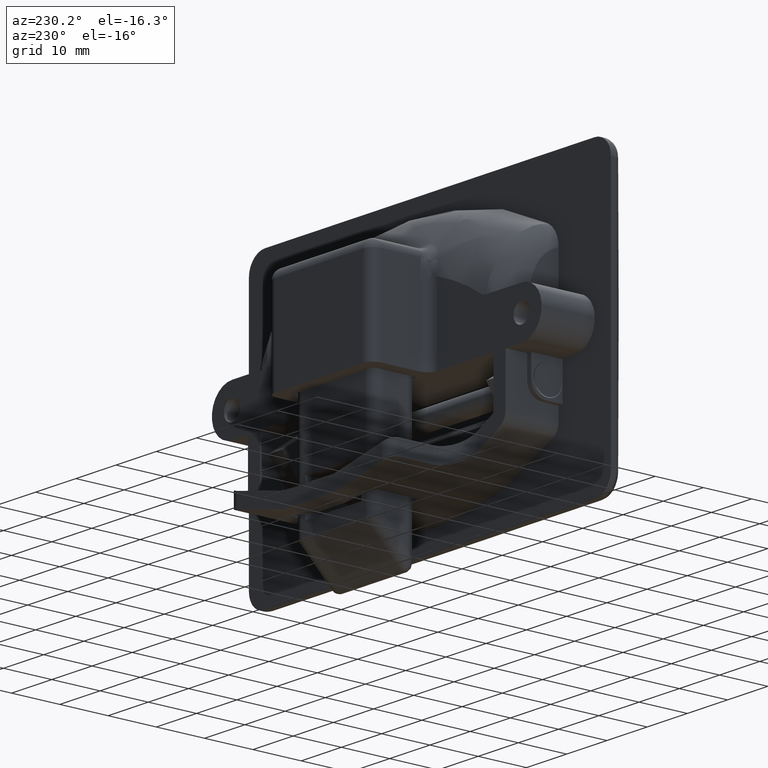
[diagram: clean part render]
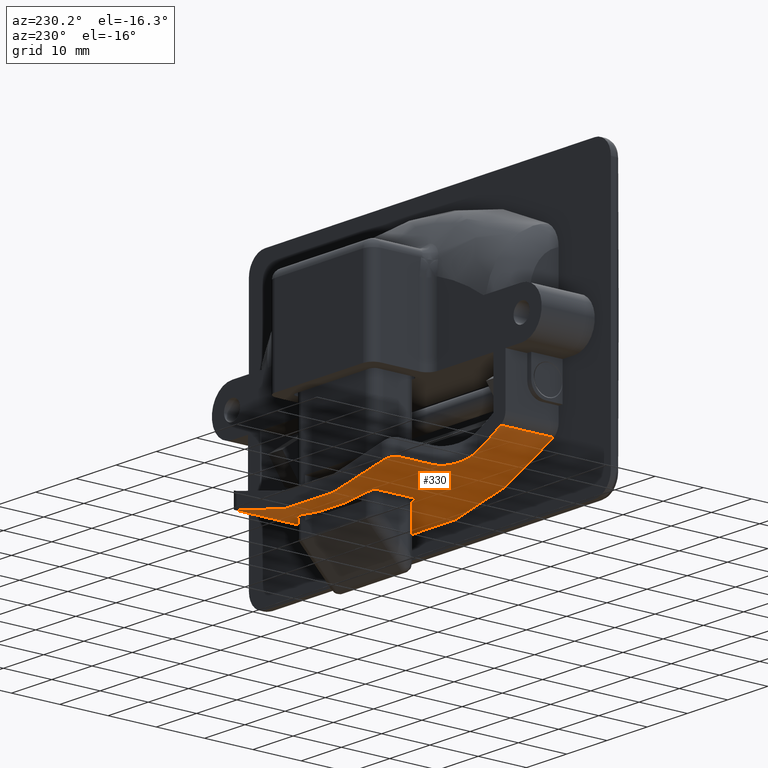
[diagram: same view with one face highlighted and labeled with its STEP entity id]
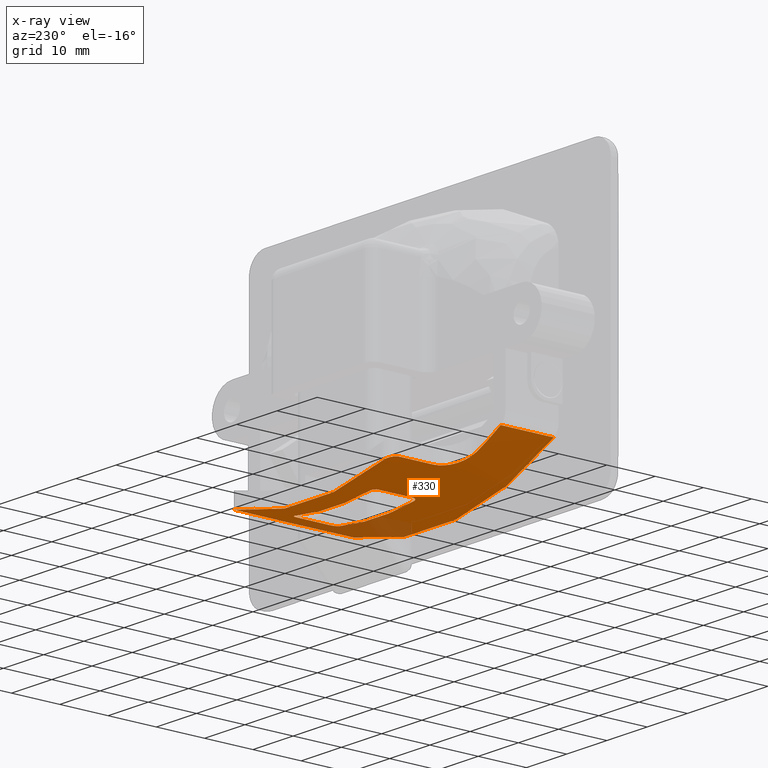
[diagram: x-ray of the same camera — body ghosted, the highlighted face saturated]
A machine part, auxiliary view. The second image highlights one B-rep face of the part: STEP entity #330.
The next image is the same camera in x-ray: the body ghosted, the highlighted face saturated — about 11% of this face is hidden behind the body in this view.
In plain terms, the highlighted cylindrical surface (partial cylindrical patch) has radius 60 mm, axis along (0, 1, 0).
Its self-contained STEP definition (entity closure, byte-faithful):
#330=ADVANCED_FACE('',(#2196,#2197),#2195,.T.);
#2195=CYLINDRICAL_SURFACE('',#4726,6.00000000000E+01);
#2196=FACE_OUTER_BOUND('',#4727,.T.);
#2197=FACE_BOUND('',#4728,.T.);
#4723=CARTESIAN_POINT('',(0.00000000000E+00,1.00000000000E+03,6.40000000000E+01));
#4724=DIRECTION('',(-0.00000000000E+00,1.00000000000E+00,-0.00000000000E+00));
#4725=DIRECTION('',(-0.00000000000E+00,-0.00000000000E+00,1.00000000000E+00));
#4726=AXIS2_PLACEMENT_3D('',#4723,#4724,#4725);
#4727=EDGE_LOOP('',(#5990,#5991,#5992,#5993,#5994,#5995,#5996,#5997,#5998,#5999,#6000,#6001));
#4728=EDGE_LOOP('',(#6002,#6003,#6004,#6005,#6006,#6007,#6008,#6009));
#5990=ORIENTED_EDGE('',*,*,#6631,.T.);
#5991=ORIENTED_EDGE('',*,*,#6694,.T.);
#5992=ORIENTED_EDGE('',*,*,#6628,.T.);
#5993=ORIENTED_EDGE('',*,*,#6459,.T.);
#5994=ORIENTED_EDGE('',*,*,#6571,.T.);
#5995=ORIENTED_EDGE('',*,*,#6696,.T.);
#5996=ORIENTED_EDGE('',*,*,#6538,.F.);
#5997=ORIENTED_EDGE('',*,*,#6695,.T.);
#5998=ORIENTED_EDGE('',*,*,#6557,.T.);
#5999=ORIENTED_EDGE('',*,*,#6453,.T.);
#6000=ORIENTED_EDGE('',*,*,#6627,.F.);
#6001=ORIENTED_EDGE('',*,*,#6461,.T.);
#6002=ORIENTED_EDGE('',*,*,#6697,.F.);
#6003=ORIENTED_EDGE('',*,*,#6698,.T.);
#6004=ORIENTED_EDGE('',*,*,#6699,.F.);
#6005=ORIENTED_EDGE('',*,*,#6700,.T.);
#6006=ORIENTED_EDGE('',*,*,#6701,.F.);
#6007=ORIENTED_EDGE('',*,*,#6702,.T.);
#6008=ORIENTED_EDGE('',*,*,#6703,.F.);
#6009=ORIENTED_EDGE('',*,*,#6704,.T.);
#6453=EDGE_CURVE('',#8563,#8564,#8565,.T.);
#6459=EDGE_CURVE('',#8606,#8599,#8607,.T.);
#6461=EDGE_CURVE('',#8619,#8620,#8621,.T.);
#6538=EDGE_CURVE('',#9140,#9147,#9148,.T.);
#6557=EDGE_CURVE('',#9275,#8563,#9276,.T.);
#6571=EDGE_CURVE('',#8599,#9363,#9370,.T.);
#6627=EDGE_CURVE('',#8619,#8564,#9739,.T.);
#6628=EDGE_CURVE('',#9745,#8606,#9746,.T.);
#6631=EDGE_CURVE('',#8620,#9758,#9765,.T.);
#6694=EDGE_CURVE('',#9758,#9745,#10161,.T.);
#6695=EDGE_CURVE('',#9140,#9275,#10167,.T.);
#6696=EDGE_CURVE('',#9363,#9147,#10173,.T.);
#6697=EDGE_CURVE('',#10179,#10180,#10181,.T.);
#6698=EDGE_CURVE('',#10179,#10187,#10188,.T.);
#6699=EDGE_CURVE('',#10194,#10187,#10195,.T.);
#6700=EDGE_CURVE('',#10194,#10201,#10202,.T.);
#6701=EDGE_CURVE('',#10208,#10201,#10209,.T.);
#6702=EDGE_CURVE('',#10208,#10215,#10216,.T.);
#6703=EDGE_CURVE('',#10222,#10215,#10223,.T.);
#6704=EDGE_CURVE('',#10222,#10180,#10229,.T.);
#8563=VERTEX_POINT('',#11804);
#8564=VERTEX_POINT('',#11805);
#8565=(BOUNDED_CURVE() B_SPLINE_CURVE(3,(#11806,#11807,#11808,#11809,#11810,#11811,#11812,#11813,#11814,#11815,#11816,#11817,#11818,#11819,#11820,#11821,#11822,#11823,#11824,#11825),.UNSPECIFIED.,.F.,.F.) B_SPLINE_CURVE_WITH_KNOTS((4,2,2,2,2,2,2,2,2,4),(1.90029435765E-17,1.01688211644E-03,2.03376423288E-03,3.05064634931E-03,3.55908740753E-03,4.06752846575E-03,5.08441058219E-03,6.10129269863E-03,7.11817481506E-03,8.13505693150E-03),.UNSPECIFIED.) CURVE() GEOMETRIC_REPRESENTATION_ITEM() RATIONAL_B_SPLINE_CURVE((1.00000000000E+00,1.00000000000E+00,1.00000000000E+00,1.00000000000E+00,1.00000000000E+00,1.00000000000E+00,1.00000000000E+00,1.00000000000E+00,1.00000000000E+00,1.00000000000E+00,1.00000000000E+00,1.00000000000E+00,1.00000000000E+00,1.00000000000E+00,1.00000000000E+00,1.00000000000E+00,1.00000000000E+00,1.00000000000E+00,1.00000000000E+00,1.00000000000E+00)) REPRESENTATION_ITEM('') );
#8599=VERTEX_POINT('',#11876);
#8606=VERTEX_POINT('',#11880);
#8607=(BOUNDED_CURVE() B_SPLINE_CURVE(3,(#11881,#11882,#11883,#11884,#11885,#11886,#11887,#11888,#11889,#11890,#11891,#11892,#11893,#11894,#11895,#11896,#11897,#11898),.UNSPECIFIED.,.F.,.F.) B_SPLINE_CURVE_WITH_KNOTS((4,2,2,2,2,2,2,2,4),(0.00000000000E+00,1.01694543904E-03,2.03389087808E-03,3.05083631712E-03,4.06778175616E-03,5.08472719520E-03,6.10167263424E-03,7.11861807328E-03,8.13556351232E-03),.UNSPECIFIED.) CURVE() GEOMETRIC_REPRESENTATION_ITEM() RATIONAL_B_SPLINE_CURVE((1.00000000000E+00,1.00000000000E+00,1.00000000000E+00,1.00000000000E+00,1.00000000000E+00,1.00000000000E+00,1.00000000000E+00,1.00000000000E+00,1.00000000000E+00,1.00000000000E+00,1.00000000000E+00,1.00000000000E+00,1.00000000000E+00,1.00000000000E+00,1.00000000000E+00,1.00000000000E+00,1.00000000000E+00,1.00000000000E+00)) REPRESENTATION_ITEM('') );
#8619=VERTEX_POINT('',#11902);
#8620=VERTEX_POINT('',#11903);
#8621=(BOUNDED_CURVE() B_SPLINE_CURVE(3,(#11904,#11905,#11906,#11907,#11908,#11909,#11910,#11911,#11912,#11913,#11914,#11915,#11916,#11917,#11918,#11919),.UNSPECIFIED.,.F.,.F.) B_SPLINE_CURVE_WITH_KNOTS((4,2,2,2,2,2,2,4),(0.00000000000E+00,4.01052428737E-04,8.02104857475E-04,1.20315728621E-03,1.60420971495E-03,2.40631457242E-03,2.80736700116E-03,3.20841942990E-03),.UNSPECIFIED.) CURVE() GEOMETRIC_REPRESENTATION_ITEM() RATIONAL_B_SPLINE_CURVE((1.00000000000E+00,1.00000000000E+00,1.00000000000E+00,1.00000000000E+00,1.00000000000E+00,1.00000000000E+00,1.00000000000E+00,1.00000000000E+00,1.00000000000E+00,1.00000000000E+00,1.00000000000E+00,1.00000000000E+00,1.00000000000E+00,1.00000000000E+00,1.00000000000E+00,1.00000000000E+00)) REPRESENTATION_ITEM('') );
#9140=VERTEX_POINT('',#12391);
#9147=VERTEX_POINT('',#12396);
#9148=CIRCLE('',#12400,6.00000000000E+01);
#9275=VERTEX_POINT('',#12527);
#9276=CIRCLE('',#12531,6.00000000000E+01);
#9363=VERTEX_POINT('',#12582);
#9370=CIRCLE('',#12590,6.00000000000E+01);
#9739=LINE('',#12920,#12921);
#9745=VERTEX_POINT('',#12923);
#9746=LINE('',#12924,#12925);
#9758=VERTEX_POINT('',#12930);
#9765=CIRCLE('',#12937,6.00000000000E+01);
#10161=(BOUNDED_CURVE() B_SPLINE_CURVE(3,(#13219,#13220,#13221,#13222,#13223,#13224,#13225,#13226,#13227,#13228,#13229,#13230,#13231,#13232),.UNSPECIFIED.,.F.,.F.) B_SPLINE_CURVE_WITH_KNOTS((4,2,2,2,2,2,4),(0.00000000000E+00,8.02127539982E-04,1.20319130997E-03,1.60425507996E-03,2.00531884995E-03,2.40638261995E-03,3.20851015993E-03),.UNSPECIFIED.) CURVE() GEOMETRIC_REPRESENTATION_ITEM() RATIONAL_B_SPLINE_CURVE((1.00000000000E+00,1.00000000000E+00,1.00000000000E+00,1.00000000000E+00,1.00000000000E+00,1.00000000000E+00,1.00000000000E+00,1.00000000000E+00,1.00000000000E+00,1.00000000000E+00,1.00000000000E+00,1.00000000000E+00,1.00000000000E+00,1.00000000000E+00)) REPRESENTATION_ITEM('') );
#10167=LINE('',#13233,#13234);
#10173=LINE('',#13236,#13237);
#10179=VERTEX_POINT('',#13239);
#10180=VERTEX_POINT('',#13240);
#10181=CIRCLE('',#13244,6.00000000000E+01);
#10187=VERTEX_POINT('',#13245);
#10188=(BOUNDED_CURVE() B_SPLINE_CURVE(3,(#13246,#13247,#13248,#13249,#13250,#13251,#13252,#13253),.UNSPECIFIED.,.F.,.F.) B_SPLINE_CURVE_WITH_KNOTS((4,2,2,4),(0.00000000000E+00,3.93109404039E-04,7.86218808078E-04,1.57243761616E-03),.UNSPECIFIED.) CURVE() GEOMETRIC_REPRESENTATION_ITEM() RATIONAL_B_SPLINE_CURVE((1.00000000000E+00,1.00000000000E+00,1.00000000000E+00,1.00000000000E+00,1.00000000000E+00,1.00000000000E+00,1.00000000000E+00,1.00000000000E+00)) REPRESENTATION_ITEM('') );
#10194=VERTEX_POINT('',#13254);
#10195=LINE('',#13255,#13256);
#10201=VERTEX_POINT('',#13258);
#10202=(BOUNDED_CURVE() B_SPLINE_CURVE(3,(#13259,#13260,#13261,#13262,#13263,#13264,#13265,#13266,#13267,#13268),.UNSPECIFIED.,.F.,.F.) B_SPLINE_CURVE_WITH_KNOTS((4,2,2,2,4),(0.00000000000E+00,3.93106970916E-04,7.86213941833E-04,1.17932091275E-03,1.57242788367E-03),.UNSPECIFIED.) CURVE() GEOMETRIC_REPRESENTATION_ITEM() RATIONAL_B_SPLINE_CURVE((1.00000000000E+00,1.00000000000E+00,1.00000000000E+00,1.00000000000E+00,1.00000000000E+00,1.00000000000E+00,1.00000000000E+00,1.00000000000E+00,1.00000000000E+00,1.00000000000E+00)) REPRESENTATION_ITEM('') );
#10208=VERTEX_POINT('',#13269);
#10209=CIRCLE('',#13273,6.00000000000E+01);
#10215=VERTEX_POINT('',#13274);
#10216=(BOUNDED_CURVE() B_SPLINE_CURVE(3,(#13275,#13276,#13277,#13278,#13279,#13280,#13281,#13282),.UNSPECIFIED.,.F.,.F.) B_SPLINE_CURVE_WITH_KNOTS((4,2,2,4),(0.00000000000E+00,3.93109404039E-04,7.86218808078E-04,1.57243761616E-03),.UNSPECIFIED.) CURVE() GEOMETRIC_REPRESENTATION_ITEM() RATIONAL_B_SPLINE_CURVE((1.00000000000E+00,1.00000000000E+00,1.00000000000E+00,1.00000000000E+00,1.00000000000E+00,1.00000000000E+00,1.00000000000E+00,1.00000000000E+00)) REPRESENTATION_ITEM('') );
#10222=VERTEX_POINT('',#13283);
#10223=LINE('',#13284,#13285);
#10229=(BOUNDED_CURVE() B_SPLINE_CURVE(3,(#13287,#13288,#13289,#13290,#13291,#13292,#13293,#13294,#13295,#13296),.UNSPECIFIED.,.F.,.F.) B_SPLINE_CURVE_WITH_KNOTS((4,2,2,2,4),(0.00000000000E+00,3.93106970917E-04,7.86213941833E-04,1.17932091275E-03,1.57242788367E-03),.UNSPECIFIED.) CURVE() GEOMETRIC_REPRESENTATION_ITEM() RATIONAL_B_SPLINE_CURVE((1.00000000000E+00,1.00000000000E+00,1.00000000000E+00,1.00000000000E+00,1.00000000000E+00,1.00000000000E+00,1.00000000000E+00,1.00000000000E+00,1.00000000000E+00,1.00000000000E+00)) REPRESENTATION_ITEM('') );
#11804=CARTESIAN_POINT('',(-2.50000000000E+01,1.10000000000E+01,9.45643942682E+00));
#11805=CARTESIAN_POINT('',(-2.00000000000E+01,1.60000000000E+01,7.43145750508E+00));
#11806=CARTESIAN_POINT('',(-2.50000000000E+01,1.10000000000E+01,9.45643942682E+00));
#11807=CARTESIAN_POINT('',(-2.46876343199E+01,1.10000000000E+01,9.31326685207E+00));
#11808=CARTESIAN_POINT('',(-2.43784484910E+01,1.10290226467E+01,9.17479763995E+00));
#11809=CARTESIAN_POINT('',(-2.37665455542E+01,1.11445358352E+01,8.90678011707E+00));
#11810=CARTESIAN_POINT('',(-2.34622736361E+01,1.12316199509E+01,8.77658565355E+00));
#11811=CARTESIAN_POINT('',(-2.28679431381E+01,1.14660851132E+01,8.52783623396E+00));
#11812=CARTESIAN_POINT('',(-2.25839454275E+01,1.16107499071E+01,8.41177915108E+00));
#11813=CARTESIAN_POINT('',(-2.21782573928E+01,1.18692037478E+01,8.24925004025E+00));
#11814=CARTESIAN_POINT('',(-2.20464343561E+01,1.19623070348E+01,8.19700988419E+00));
#11815=CARTESIAN_POINT('',(-2.17899839181E+01,1.21630335878E+01,8.09637243857E+00));
#11816=CARTESIAN_POINT('',(-2.16646480227E+01,1.22713827883E+01,8.04770494107E+00));
#11817=CARTESIAN_POINT('',(-2.13072203113E+01,1.26129637343E+01,7.91018320722E+00));
#11818=CARTESIAN_POINT('',(-2.10927354993E+01,1.28625979649E+01,7.82938816192E+00));
#11819=CARTESIAN_POINT('',(-2.07125572092E+01,1.34061916563E+01,7.68809096680E+00));
#11820=CARTESIAN_POINT('',(-2.05454164829E+01,1.37042845785E+01,7.62707971467E+00));
#11821=CARTESIAN_POINT('',(-2.02775885844E+01,1.43229627227E+01,7.53018787747E+00));
#11822=CARTESIAN_POINT('',(-2.01752976407E+01,1.46441776037E+01,7.49369212750E+00));
#11823=CARTESIAN_POINT('',(-2.00360036915E+01,1.53109804976E+01,7.44415131615E+00));
#11824=CARTESIAN_POINT('',(-2.00000000000E+01,1.56555004195E+01,7.43145750508E+00));
#11825=CARTESIAN_POINT('',(-2.00000000000E+01,1.60000000000E+01,7.43145750508E+00));
#11876=CARTESIAN_POINT('',(2.50000000000E+01,1.10000000000E+01,9.45643942682E+00));
#11880=CARTESIAN_POINT('',(2.00000000000E+01,1.60000000000E+01,7.43145750508E+00));
#11881=CARTESIAN_POINT('',(2.00000000000E+01,1.60000000000E+01,7.43145750508E+00));
#11882=CARTESIAN_POINT('',(2.00000000000E+01,1.56560355282E+01,7.43145750508E+00));
#11883=CARTESIAN_POINT('',(2.00351150038E+01,1.53184784308E+01,7.44383797379E+00));
#11884=CARTESIAN_POINT('',(2.01722535883E+01,1.46555970619E+01,7.49260684197E+00));
#11885=CARTESIAN_POINT('',(2.02762261444E+01,1.43268798070E+01,7.52969981135E+00));
#11886=CARTESIAN_POINT('',(2.05431979807E+01,1.37086496601E+01,7.62627237108E+00));
#11887=CARTESIAN_POINT('',(2.07058898171E+01,1.34168509842E+01,7.68563432190E+00));
#11888=CARTESIAN_POINT('',(2.10885225859E+01,1.28675272484E+01,7.82780162761E+00));
#11889=CARTESIAN_POINT('',(2.13058752796E+01,1.26146875213E+01,7.90968265695E+00));
#11890=CARTESIAN_POINT('',(2.17781820452E+01,1.21624503789E+01,8.09137089964E+00));
#11891=CARTESIAN_POINT('',(2.20373388262E+01,1.19592987373E+01,8.19281435676E+00));
#11892=CARTESIAN_POINT('',(2.25826607320E+01,1.16112531642E+01,8.41124478619E+00));
#11893=CARTESIAN_POINT('',(2.28668577570E+01,1.14667650852E+01,8.52740346802E+00));
#11894=CARTESIAN_POINT('',(2.34565273611E+01,1.12336379875E+01,8.77415936505E+00));
#11895=CARTESIAN_POINT('',(2.37636636066E+01,1.11451808411E+01,8.90552819092E+00));
#11896=CARTESIAN_POINT('',(2.43782210740E+01,1.10289651268E+01,9.17468769631E+00));
#11897=CARTESIAN_POINT('',(2.46879410542E+01,1.10000000000E+01,9.31340744351E+00));
#11898=CARTESIAN_POINT('',(2.50000000000E+01,1.10000000000E+01,9.45643942682E+00));
#11902=CARTESIAN_POINT('',(-2.00000000000E+01,2.30000000000E+01,7.43145750508E+00));
#11903=CARTESIAN_POINT('',(-1.80000000000E+01,2.50000000000E+01,6.76364791498E+00));
#11904=CARTESIAN_POINT('',(-2.00000000000E+01,2.30000000000E+01,7.43145750508E+00));
#11905=CARTESIAN_POINT('',(-2.00000000000E+01,2.31356625999E+01,7.43145750508E+00));
#11906=CARTESIAN_POINT('',(-1.99863405015E+01,2.32688231149E+01,7.42662293079E+00));
#11907=CARTESIAN_POINT('',(-1.99330052131E+01,2.35303822217E+01,7.40780881754E+00));
#11908=CARTESIAN_POINT('',(-1.98925852720E+01,2.36601591949E+01,7.39356845844E+00));
#11909=CARTESIAN_POINT('',(-1.97885048053E+01,2.39049528915E+01,7.35710001913E+00));
#11910=CARTESIAN_POINT('',(-1.97250396106E+01,2.40206512734E+01,7.33493965206E+00));
#11911=CARTESIAN_POINT('',(-1.95756233860E+01,2.42389114680E+01,7.28314870406E+00));
#11912=CARTESIAN_POINT('',(-1.94901829118E+01,2.43402435767E+01,7.25370116753E+00));
#11913=CARTESIAN_POINT('',(-1.92111442348E+01,2.46126752509E+01,7.15837280946E+00));
#11914=CARTESIAN_POINT('',(-1.89893883396E+01,2.47569140770E+01,7.08369663845E+00));
#11915=CARTESIAN_POINT('',(-1.86332933980E+01,2.49014069954E+01,6.96653621242E+00));
#11916=CARTESIAN_POINT('',(-1.85086097473E+01,2.49384973986E+01,6.92593530316E+00));
#11917=CARTESIAN_POINT('',(-1.82567883216E+01,2.49875904501E+01,6.84488495352E+00));
#11918=CARTESIAN_POINT('',(-1.81292365433E+01,2.50000000000E+01,6.80429092760E+00));
#11919=CARTESIAN_POINT('',(-1.80000000000E+01,2.50000000000E+01,6.76364791498E+00));
#12391=CARTESIAN_POINT('',(-3.07826086957E+01,0.00000000000E+00,1.24982427301E+01));
#12396=CARTESIAN_POINT('',(3.07826086957E+01,0.00000000000E+00,1.24982427301E+01));
#12397=CARTESIAN_POINT('',(0.00000000000E+00,0.00000000000E+00,6.40000000000E+01));
#12398=DIRECTION('',(0.00000000000E+00,-1.00000000000E+00,0.00000000000E+00));
#12399=DIRECTION('',(-0.00000000000E+00,-0.00000000000E+00,1.00000000000E+00));
#12400=AXIS2_PLACEMENT_3D('',#12397,#12398,#12399);
#12527=CARTESIAN_POINT('',(-3.07826086957E+01,1.10000000000E+01,1.24982427301E+01));
#12528=CARTESIAN_POINT('',(0.00000000000E+00,1.10000000000E+01,6.40000000000E+01));
#12529=DIRECTION('',(0.00000000000E+00,-1.00000000000E+00,0.00000000000E+00));
#12530=DIRECTION('',(-0.00000000000E+00,-0.00000000000E+00,1.00000000000E+00));
#12531=AXIS2_PLACEMENT_3D('',#12528,#12529,#12530);
#12582=CARTESIAN_POINT('',(3.07826086957E+01,1.10000000000E+01,1.24982427301E+01));
#12587=CARTESIAN_POINT('',(0.00000000000E+00,1.10000000000E+01,6.40000000000E+01));
#12588=DIRECTION('',(0.00000000000E+00,-1.00000000000E+00,0.00000000000E+00));
#12589=DIRECTION('',(-0.00000000000E+00,-0.00000000000E+00,1.00000000000E+00));
#12590=AXIS2_PLACEMENT_3D('',#12587,#12588,#12589);
#12920=CARTESIAN_POINT('',(-2.00000000000E+01,2.30000000000E+01,7.43145750508E+00));
#12921=VECTOR('',#12922,7.00000000000E+00);
#12922=DIRECTION('',(0.00000000000E+00,-1.00000000000E+00,0.00000000000E+00));
#12923=CARTESIAN_POINT('',(2.00000000000E+01,2.30000000000E+01,7.43145750508E+00));
#12924=CARTESIAN_POINT('',(2.00000000000E+01,2.30000000000E+01,7.43145750508E+00));
#12925=VECTOR('',#12926,7.00000000000E+00);
#12926=DIRECTION('',(0.00000000000E+00,-1.00000000000E+00,0.00000000000E+00));
#12930=CARTESIAN_POINT('',(1.80000000000E+01,2.50000000000E+01,6.76364791498E+00));
#12934=CARTESIAN_POINT('',(0.00000000000E+00,2.50000000000E+01,6.40000000000E+01));
#12935=DIRECTION('',(0.00000000000E+00,-1.00000000000E+00,0.00000000000E+00));
#12936=DIRECTION('',(-0.00000000000E+00,-0.00000000000E+00,1.00000000000E+00));
#12937=AXIS2_PLACEMENT_3D('',#12934,#12935,#12936);
#13219=CARTESIAN_POINT('',(1.80000000000E+01,2.50000000000E+01,6.76364791498E+00));
#13220=CARTESIAN_POINT('',(1.82586998763E+01,2.50000000000E+01,6.84500526225E+00));
#13221=CARTESIAN_POINT('',(1.85112634043E+01,2.49507051000E+01,6.92639331733E+00));
#13222=CARTESIAN_POINT('',(1.88701858187E+01,2.48053910393E+01,7.04447392644E+00));
#13223=CARTESIAN_POINT('',(1.89839172329E+01,2.47459921823E+01,7.08230645843E+00));
#13224=CARTESIAN_POINT('',(1.91996973092E+01,2.46053996974E+01,7.15473128892E+00));
#13225=CARTESIAN_POINT('',(1.93027888782E+01,2.45230833956E+01,7.18968318179E+00));
#13226=CARTESIAN_POINT('',(1.94897217667E+01,2.43408098109E+01,7.25354195267E+00));
#13227=CARTESIAN_POINT('',(1.95738001195E+01,2.42411500626E+01,7.28251975726E+00));
#13228=CARTESIAN_POINT('',(1.97227913097E+01,2.40243487675E+01,7.33415738595E+00));
#13229=CARTESIAN_POINT('',(1.97879241645E+01,2.39060525643E+01,7.35689720375E+00));
#13230=CARTESIAN_POINT('',(1.99439544361E+01,2.35398679651E+01,7.41156628813E+00));
#13231=CARTESIAN_POINT('',(2.00000000000E+01,2.32716163169E+01,7.43145750508E+00));
#13232=CARTESIAN_POINT('',(2.00000000000E+01,2.30000000000E+01,7.43145750508E+00));
#13233=CARTESIAN_POINT('',(-3.07826086957E+01,0.00000000000E+00,1.24982427301E+01));
#13234=VECTOR('',#13235,1.10000000000E+01);
#13235=DIRECTION('',(0.00000000000E+00,1.00000000000E+00,0.00000000000E+00));
#13236=CARTESIAN_POINT('',(3.07826086957E+01,1.10000000000E+01,1.24982427301E+01));
#13237=VECTOR('',#13238,1.10000000000E+01);
#13238=DIRECTION('',(0.00000000000E+00,-1.00000000000E+00,0.00000000000E+00));
#13239=CARTESIAN_POINT('',(9.20000000000E+00,1.10000000000E+01,4.70952859016E+00));
#13240=CARTESIAN_POINT('',(-9.20000000000E+00,1.10000000000E+01,4.70952859016E+00));
#13241=CARTESIAN_POINT('',(0.00000000000E+00,1.10000000000E+01,6.40000000000E+01));
#13242=DIRECTION('',(-0.00000000000E+00,1.00000000000E+00,0.00000000000E+00));
#13243=DIRECTION('',(-0.00000000000E+00,-0.00000000000E+00,1.00000000000E+00));
#13244=AXIS2_PLACEMENT_3D('',#13241,#13242,#13243);
#13245=CARTESIAN_POINT('',(1.02000000000E+01,1.20000000000E+01,4.87335625962E+00));
#13246=CARTESIAN_POINT('',(9.20000000000E+00,1.10000000000E+01,4.70952859016E+00));
#13247=CARTESIAN_POINT('',(9.33134586188E+00,1.10000000000E+01,4.72990930060E+00));
#13248=CARTESIAN_POINT('',(9.46008402736E+00,1.10256327753E+01,4.75034382707E+00));
#13249=CARTESIAN_POINT('',(9.70145774451E+00,1.11250283889E+01,4.78938723467E+00));
#13250=CARTESIAN_POINT('',(9.81211909807E+00,1.11985510142E+01,4.80767682716E+00));
#13251=CARTESIAN_POINT('',(1.00897428555E+01,1.14742636410E+01,4.85414381143E+00));
#13252=CARTESIAN_POINT('',(1.02000000000E+01,1.17340674125E+01,4.87335625964E+00));
#13253=CARTESIAN_POINT('',(1.02000000000E+01,1.20000000000E+01,4.87335625964E+00));
#13254=CARTESIAN_POINT('',(1.02000000000E+01,1.91999999999E+01,4.87335625963E+00));
#13255=CARTESIAN_POINT('',(1.02000000000E+01,1.91999999999E+01,4.87335625964E+00));
#13256=VECTOR('',#13257,7.19999999991E+00);
#13257=DIRECTION('',(0.00000000000E+00,-1.00000000000E+00,0.00000000000E+00));
#13258=CARTESIAN_POINT('',(9.20000000000E+00,2.01999999999E+01,4.70952859017E+00));
#13259=CARTESIAN_POINT('',(1.02000000000E+01,1.91999999999E+01,4.87335625963E+00));
#13260=CARTESIAN_POINT('',(1.02000000000E+01,1.93329346384E+01,4.87335625963E+00));
#13261=CARTESIAN_POINT('',(1.01736043117E+01,1.94634203786E+01,4.86878648786E+00));
#13262=CARTESIAN_POINT('',(1.00723902593E+01,1.97061925395E+01,4.85146163620E+00));
#13263=CARTESIAN_POINT('',(9.99753718472E+00,1.98171781762E+01,4.83871178474E+00));
#13264=CARTESIAN_POINT('',(9.81277838711E+00,2.00009226620E+01,4.80778637883E+00));
#13265=CARTESIAN_POINT('',(9.70139617793E+00,2.00748722415E+01,4.78937898339E+00));
#13266=CARTESIAN_POINT('',(9.46178518323E+00,2.01737905750E+01,4.75061730178E+00));
#13267=CARTESIAN_POINT('',(9.33131491968E+00,2.01999999999E+01,4.72990449935E+00));
#13268=CARTESIAN_POINT('',(9.20000000000E+00,2.01999999999E+01,4.70952859017E+00));
#13269=CARTESIAN_POINT('',(-9.20000000000E+00,2.01999999999E+01,4.70952859016E+00));
#13270=CARTESIAN_POINT('',(0.00000000000E+00,2.01999999999E+01,6.40000000000E+01));
#13271=DIRECTION('',(-0.00000000000E+00,-1.00000000000E+00,0.00000000000E+00));
#13272=DIRECTION('',(1.53333333333E-01,-0.00000000000E+00,-9.88174523497E-01));
#13273=AXIS2_PLACEMENT_3D('',#13270,#13271,#13272);
#13274=CARTESIAN_POINT('',(-1.02000000000E+01,1.91999999999E+01,4.87335625962E+00));
#13275=CARTESIAN_POINT('',(-9.20000000000E+00,2.01999999999E+01,4.70952859016E+00));
#13276=CARTESIAN_POINT('',(-9.33134586188E+00,2.01999999999E+01,4.72990930060E+00));
#13277=CARTESIAN_POINT('',(-9.46008402736E+00,2.01743672246E+01,4.75034382707E+00));
#13278=CARTESIAN_POINT('',(-9.70145774451E+00,2.00749716111E+01,4.78938723467E+00));
#13279=CARTESIAN_POINT('',(-9.81211909808E+00,2.00014489857E+01,4.80767682716E+00));
#13280=CARTESIAN_POINT('',(-1.00897428555E+01,1.97257363589E+01,4.85414381144E+00));
#13281=CARTESIAN_POINT('',(-1.02000000000E+01,1.94659325874E+01,4.87335625964E+00));
#13282=CARTESIAN_POINT('',(-1.02000000000E+01,1.91999999999E+01,4.87335625964E+00));
#13283=CARTESIAN_POINT('',(-1.02000000000E+01,1.20000000000E+01,4.87335625963E+00));
#13284=CARTESIAN_POINT('',(-1.02000000000E+01,1.20000000000E+01,4.87335625964E+00));
#13285=VECTOR('',#13286,7.19999999991E+00);
#13286=DIRECTION('',(0.00000000000E+00,1.00000000000E+00,0.00000000000E+00));
#13287=CARTESIAN_POINT('',(-1.02000000000E+01,1.20000000000E+01,4.87335625963E+00));
#13288=CARTESIAN_POINT('',(-1.02000000000E+01,1.18670653615E+01,4.87335625963E+00));
#13289=CARTESIAN_POINT('',(-1.01736043117E+01,1.17365796213E+01,4.86878648786E+00));
#13290=CARTESIAN_POINT('',(-1.00723902593E+01,1.14938074604E+01,4.85146163620E+00));
#13291=CARTESIAN_POINT('',(-9.99753718472E+00,1.13828218237E+01,4.83871178474E+00));
#13292=CARTESIAN_POINT('',(-9.81277838711E+00,1.11990773379E+01,4.80778637883E+00));
#13293=CARTESIAN_POINT('',(-9.70139617793E+00,1.11251277584E+01,4.78937898339E+00));
#13294=CARTESIAN_POINT('',(-9.46178518323E+00,1.10262094249E+01,4.75061730178E+00));
#13295=CARTESIAN_POINT('',(-9.33131491968E+00,1.10000000000E+01,4.72990449935E+00));
#13296=CARTESIAN_POINT('',(-9.20000000000E+00,1.10000000000E+01,4.70952859017E+00));